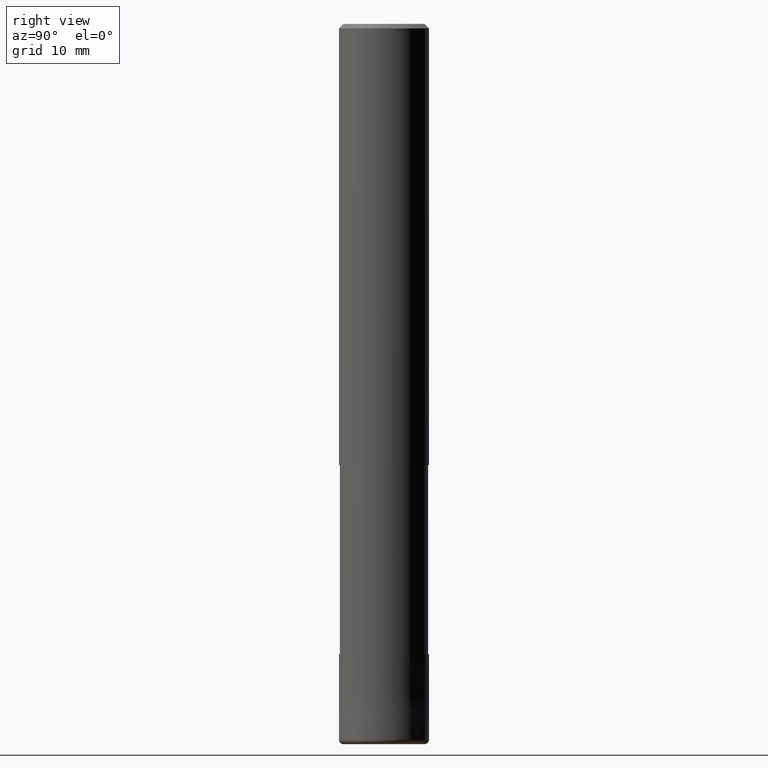
[diagram: clean part render]
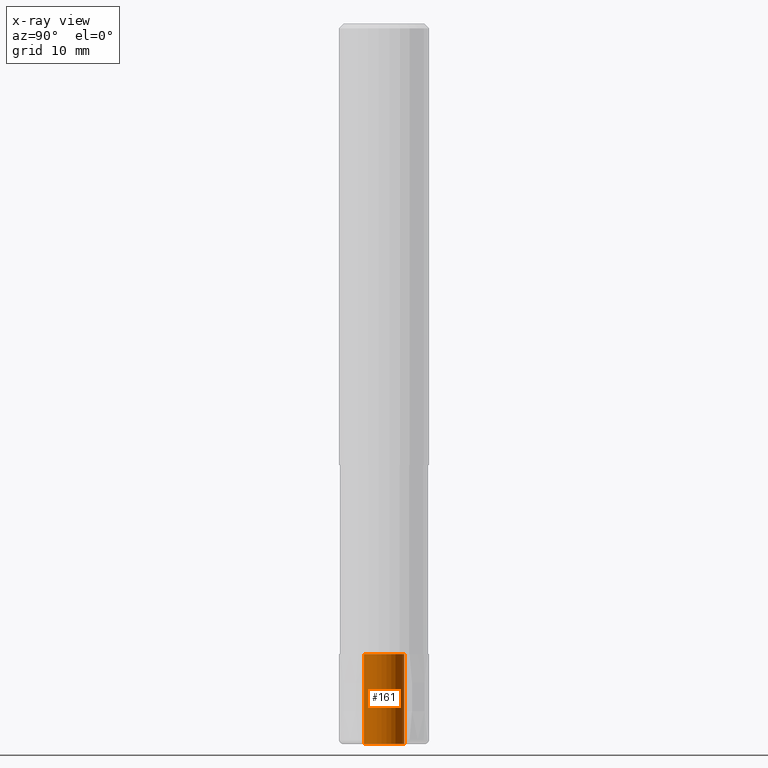
[diagram: x-ray — body ghosted, one internal face saturated and labeled with its STEP entity id]
A machine part, right view, then the same camera in x-ray: the body is ghosted and one INTERNAL B-rep face — a face not visible from any outside direction — is saturated and labeled: STEP entity #161.
In plain terms, the highlighted cylindrical surface (edge-blend (fillet) strip) has radius 2.25 mm, axis along (-0, -0, 1).
Its self-contained STEP definition (entity closure, byte-faithful):
#135=EDGE_CURVE('',#265,#235,#325,.T.);
#157=VERTEX_POINT('',#347);
#159=EDGE_CURVE('',#157,#235,#349,.T.);
#161=ADVANCED_FACE('',(#351),#352,.F.);
#171=EDGE_CURVE('',#249,#157,#363,.T.);
#201=EDGE_CURVE('',#265,#249,#396,.T.);
#235=VERTEX_POINT('',#435);
#249=VERTEX_POINT('',#453);
#265=VERTEX_POINT('',#473);
#325=CIRCLE('',#532,2.25);
#347=CARTESIAN_POINT('',(2.75536429610035E-016,-2.25,-80.0));
#349=LINE('',#565,#566);
#351=FACE_OUTER_BOUND('',#568,.T.);
#352=CYLINDRICAL_SURFACE('',#569,2.25);
#363=CIRCLE('',#584,2.25);
#396=LINE('',#629,#630);
#435=CARTESIAN_POINT('',(2.75536429610035E-016,-2.25,-70.0));
#453=CARTESIAN_POINT('',(0.0,2.25,-80.0));
#473=CARTESIAN_POINT('',(0.0,2.25,-70.0));
#532=AXIS2_PLACEMENT_3D('',#777,#778,#779);
#565=CARTESIAN_POINT('',(2.75536429610035E-016,-2.25,-75.0));
#566=VECTOR('',#799,1.0);
#568=EDGE_LOOP('',(#801,#802,#803,#804));
#569=AXIS2_PLACEMENT_3D('',#805,#806,#807);
#584=AXIS2_PLACEMENT_3D('',#825,#826,#827);
#629=CARTESIAN_POINT('',(-2.75536429610035E-016,2.25,-75.0));
#630=VECTOR('',#863,1.0);
#777=CARTESIAN_POINT('',(0.0,0.0,-70.0));
#778=DIRECTION('',(0.0,0.0,-1.0));
#779=DIRECTION('',(0.0,1.0,0.0));
#799=DIRECTION('',(0.0,-0.0,1.0));
#801=ORIENTED_EDGE('',*,*,#201,.T.);
#802=ORIENTED_EDGE('',*,*,#171,.T.);
#803=ORIENTED_EDGE('',*,*,#159,.T.);
#804=ORIENTED_EDGE('',*,*,#135,.F.);
#805=CARTESIAN_POINT('',(0.0,0.0,-75.0));
#806=DIRECTION('',(-0.0,-0.0,1.0));
#807=DIRECTION('',(0.0,1.0,0.0));
#825=CARTESIAN_POINT('',(0.0,0.0,-80.0));
#826=DIRECTION('',(0.0,0.0,-1.0));
#827=DIRECTION('',(0.0,1.0,0.0));
#863=DIRECTION('',(0.0,-0.0,-1.0));